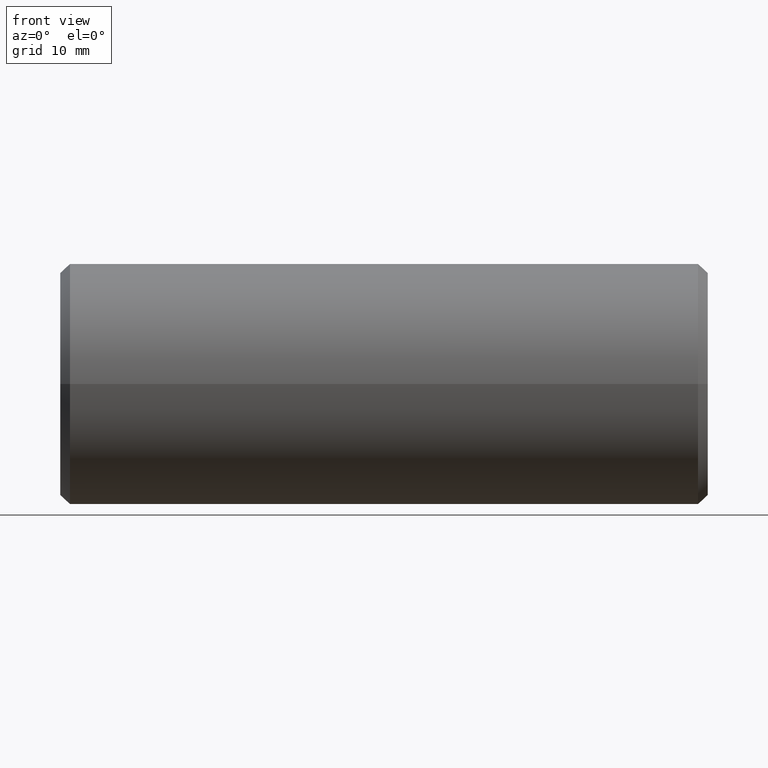
[diagram: clean part render]
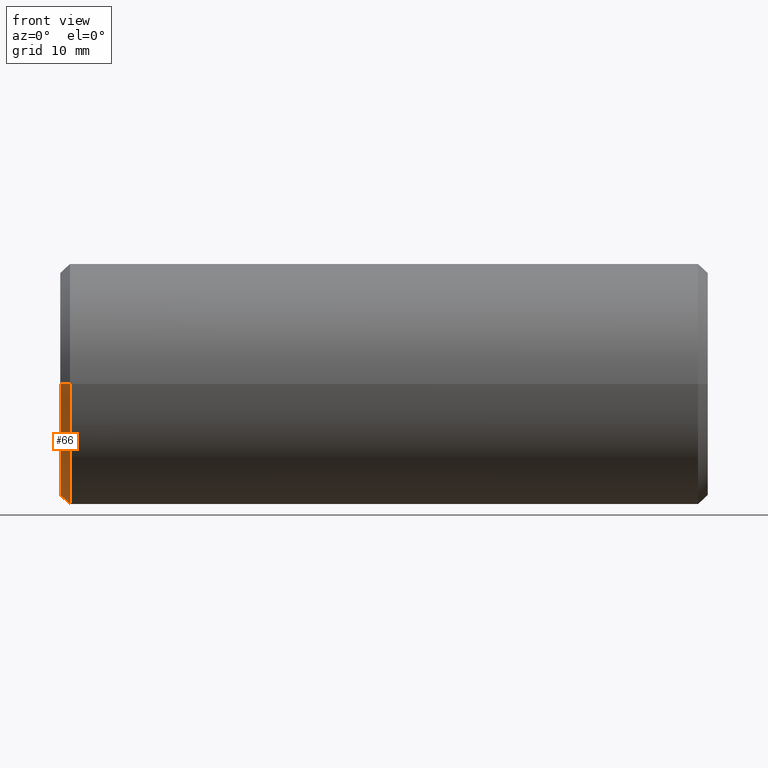
[diagram: same view with one face highlighted and labeled with its STEP entity id]
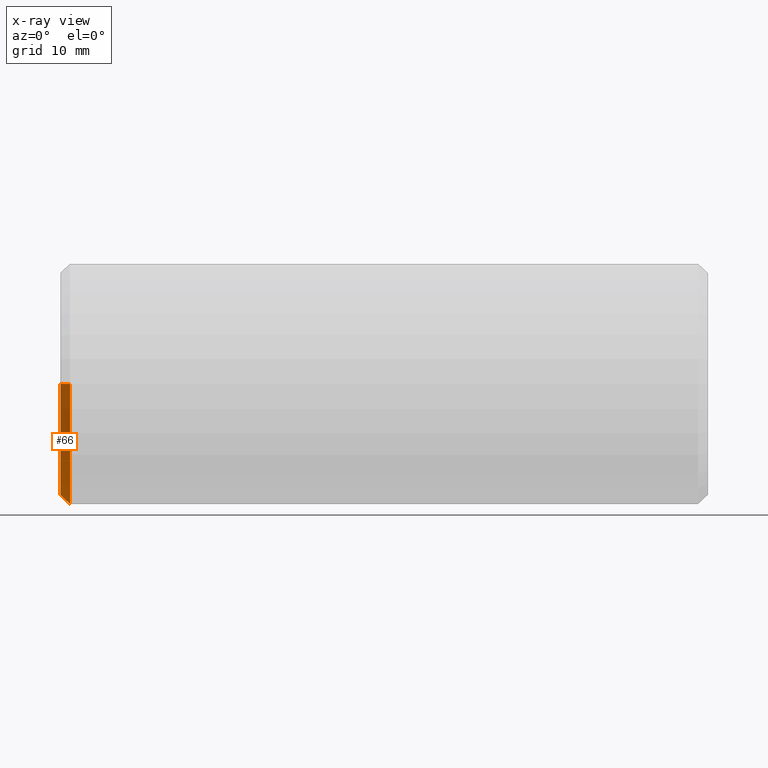
[diagram: x-ray of the same camera — body ghosted, the highlighted face saturated]
A machine part, front view. The second image highlights one B-rep face of the part: STEP entity #66.
The next image is the same camera in x-ray: the body ghosted, the highlighted face saturated — about 0% of this face is hidden behind the body in this view.
In plain terms, the highlighted conical surface has half-angle 45 deg.
Its self-contained STEP definition (entity closure, byte-faithful):
#11 = CONICAL_SURFACE ( 'NONE', #208, 11.49000000000000377, 0.7853981633974526089 ) ;
#14 = LINE ( 'NONE', #115, #275 ) ;
#15 = VERTEX_POINT ( 'NONE', #234 ) ;
#24 = DIRECTION ( 'NONE',  ( 1.000000000000000000, 3.061616997868385113E-16, 0.000000000000000000 ) ) ;
#26 = LINE ( 'NONE', #97, #121 ) ;
#29 = EDGE_CURVE ( 'NONE', #291, #314, #14, .T. ) ;
#37 = VERTEX_POINT ( 'NONE', #228 ) ;
#44 = AXIS2_PLACEMENT_3D ( 'NONE', #317, #212, #319 ) ;
#50 = DIRECTION ( 'NONE',  ( -6.039072153095931897E-16, 1.000000000000000000, 0.000000000000000000 ) ) ;
#66 = ADVANCED_FACE ( 'NONE', ( #123 ), #11, .T. ) ;
#70 = DIRECTION ( 'NONE',  ( 0.7071067811865445751, -0.7071067811865503483, 8.659560562354968603E-17 ) ) ;
#88 = EDGE_CURVE ( 'NONE', #314, #15, #193, .T. ) ;
#97 = CARTESIAN_POINT ( 'NONE',  ( -33.50000000000000711, 11.48999999999999488, 0.000000000000000000 ) ) ;
#115 = CARTESIAN_POINT ( 'NONE',  ( -33.49999999999999289, -11.49000000000001265, 1.407119172220309195E-15 ) ) ;
#120 = EDGE_LOOP ( 'NONE', ( #167, #219, #232, #313 ) ) ;
#121 = VECTOR ( 'NONE', #129, 1000.000000000000114 ) ;
#123 = FACE_OUTER_BOUND ( 'NONE', #120, .T. ) ;
#129 = DIRECTION ( 'NONE',  ( 0.7071067811865441310, 0.7071067811865507924, 0.000000000000000000 ) ) ;
#156 = DIRECTION ( 'NONE',  ( 6.039072153095931897E-16, -1.000000000000000000, 0.000000000000000000 ) ) ;
#159 = CIRCLE ( 'NONE', #233, 11.49000000000000377 ) ;
#167 = ORIENTED_EDGE ( 'NONE', *, *, #29, .F. ) ;
#177 = EDGE_CURVE ( 'NONE', #37, #291, #159, .T. ) ;
#193 = CIRCLE ( 'NONE', #44, 12.49000000000000021 ) ;
#208 = AXIS2_PLACEMENT_3D ( 'NONE', #235, #24, #50 ) ;
#209 = EDGE_CURVE ( 'NONE', #37, #15, #26, .T. ) ;
#212 = DIRECTION ( 'NONE',  ( 1.000000000000000000, 3.061616997868385113E-16, 0.000000000000000000 ) ) ;
#219 = ORIENTED_EDGE ( 'NONE', *, *, #177, .F. ) ;
#228 = CARTESIAN_POINT ( 'NONE',  ( -33.50000000000000711, 11.48999999999999488, 0.000000000000000000 ) ) ;
#232 = ORIENTED_EDGE ( 'NONE', *, *, #209, .T. ) ;
#233 = AXIS2_PLACEMENT_3D ( 'NONE', #265, #299, #156 ) ;
#234 = CARTESIAN_POINT ( 'NONE',  ( -32.50000000000002132, 12.48999999999999133, 0.000000000000000000 ) ) ;
#235 = CARTESIAN_POINT ( 'NONE',  ( -33.50000000000000000, -8.388830574159368693E-15, 0.000000000000000000 ) ) ;
#265 = CARTESIAN_POINT ( 'NONE',  ( -33.50000000000000000, -8.388830574159365537E-15, 0.000000000000000000 ) ) ;
#274 = CARTESIAN_POINT ( 'NONE',  ( -32.50000000000000711, -12.49000000000000732, 1.529583852135045527E-15 ) ) ;
#275 = VECTOR ( 'NONE', #70, 1000.000000000000114 ) ;
#291 = VERTEX_POINT ( 'NONE', #349 ) ;
#299 = DIRECTION ( 'NONE',  ( -1.000000000000000000, -3.061616997868382648E-16, 0.000000000000000000 ) ) ;
#313 = ORIENTED_EDGE ( 'NONE', *, *, #88, .F. ) ;
#314 = VERTEX_POINT ( 'NONE', #274 ) ;
#317 = CARTESIAN_POINT ( 'NONE',  ( -32.50000000000001421, -8.082668874372535555E-15, 0.000000000000000000 ) ) ;
#319 = DIRECTION ( 'NONE',  ( 5.555559570782408784E-16, -1.000000000000000000, 0.000000000000000000 ) ) ;
#349 = CARTESIAN_POINT ( 'NONE',  ( -33.49999999999999289, -11.49000000000001265, 1.468351512177676572E-15 ) ) ;